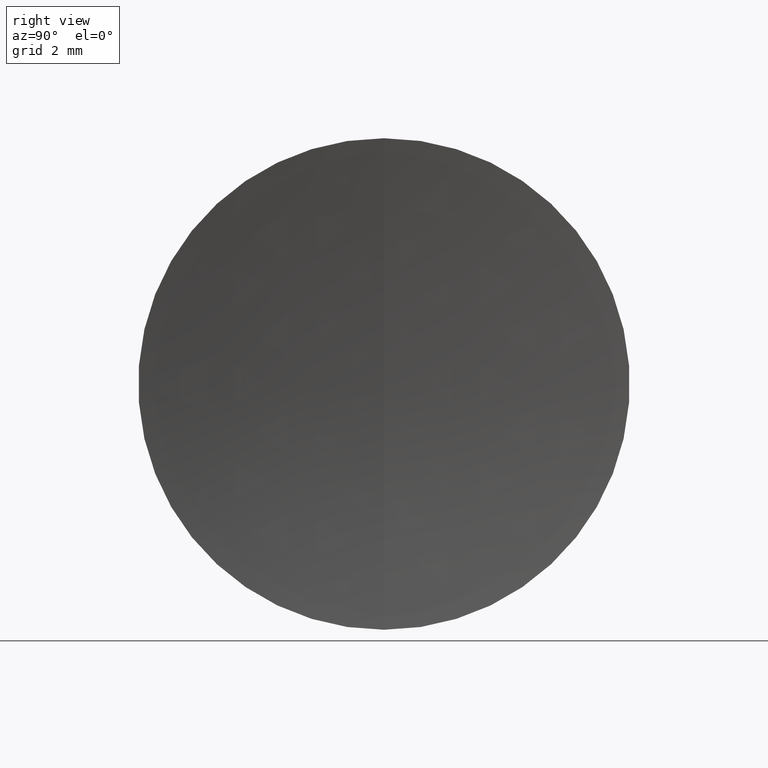
[diagram: clean part render]
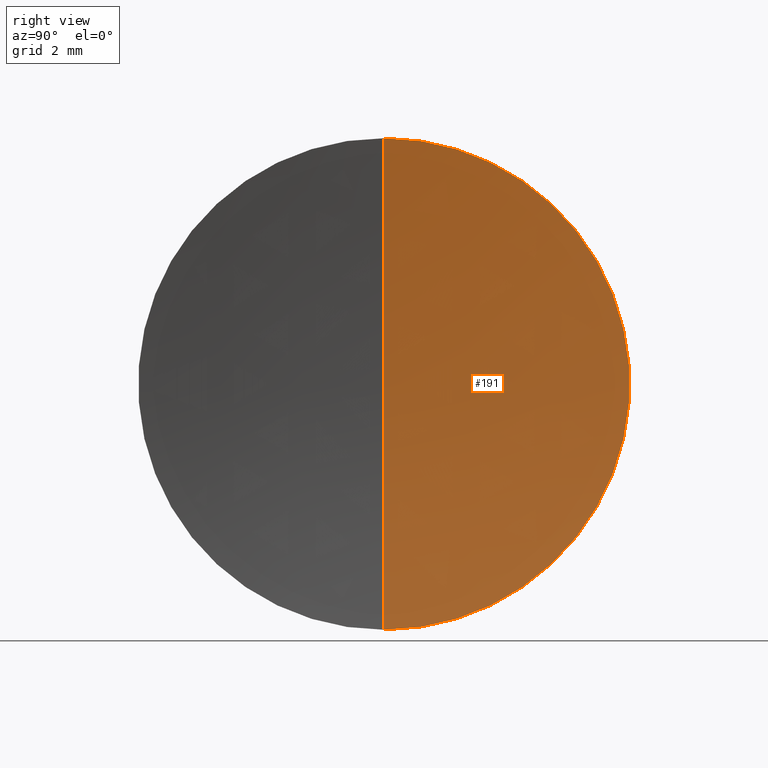
[diagram: same view with one face highlighted and labeled with its STEP entity id]
A machine part, right view. The second image highlights one B-rep face of the part: STEP entity #191.
In plain terms, the highlighted spherical surface has radius 44.6 mm.
Its self-contained STEP definition (entity closure, byte-faithful):
#17 = CARTESIAN_POINT ( 'NONE',  ( 75.97197047241489500, 0.0000000000000000000, 0.0000000000000000000 ) ) ;
#28 = AXIS2_PLACEMENT_3D ( 'NONE', #46, #253, #129 ) ;
#46 = CARTESIAN_POINT ( 'NONE',  ( 75.97197047241489500, 0.0000000000000000000, 0.0000000000000000000 ) ) ;
#49 = EDGE_CURVE ( 'NONE', #215, #295, #222, .T. ) ;
#64 = FACE_OUTER_BOUND ( 'NONE', #302, .T. ) ;
#74 = ORIENTED_EDGE ( 'NONE', *, *, #76, .T. ) ;
#76 = EDGE_CURVE ( 'NONE', #215, #80, #238, .T. ) ;
#80 = VERTEX_POINT ( 'NONE', #93 ) ;
#93 = CARTESIAN_POINT ( 'NONE',  ( 31.37197047241489800, 0.0000000000000000000, -2.730962362098597700E-015 ) ) ;
#103 = EDGE_CURVE ( 'NONE', #295, #80, #182, .T. ) ;
#129 = DIRECTION ( 'NONE',  ( 0.0000000000000000000, 0.0000000000000000000, -1.000000000000000000 ) ) ;
#143 = AXIS2_PLACEMENT_3D ( 'NONE', #244, #173, #196 ) ;
#148 = AXIS2_PLACEMENT_3D ( 'NONE', #315, #152, #284 ) ;
#152 = DIRECTION ( 'NONE',  ( 0.0000000000000000000, -1.000000000000000000, -1.224646799147353200E-016 ) ) ;
#173 = DIRECTION ( 'NONE',  ( -1.000000000000000000, -0.0000000000000000000, -0.0000000000000000000 ) ) ;
#182 = CIRCLE ( 'NONE', #229, 44.60000000000000100 ) ;
#191 = ADVANCED_FACE ( 'NONE', ( #64 ), #339, .F. ) ;
#196 = DIRECTION ( 'NONE',  ( 0.0000000000000000000, 0.0000000000000000000, 1.000000000000000000 ) ) ;
#205 = DIRECTION ( 'NONE',  ( 0.0000000000000000000, 1.000000000000000000, -0.0000000000000000000 ) ) ;
#215 = VERTEX_POINT ( 'NONE', #345 ) ;
#222 = CIRCLE ( 'NONE', #143, 6.349999999999989900 ) ;
#229 = AXIS2_PLACEMENT_3D ( 'NONE', #17, #205, #340 ) ;
#235 = ORIENTED_EDGE ( 'NONE', *, *, #103, .F. ) ;
#238 = CIRCLE ( 'NONE', #148, 44.60000000000000100 ) ;
#244 = CARTESIAN_POINT ( 'NONE',  ( 31.82633082363418000, 0.0000000000000000000, 0.0000000000000000000 ) ) ;
#253 = DIRECTION ( 'NONE',  ( -0.0000000000000000000, -1.000000000000000000, -0.0000000000000000000 ) ) ;
#284 = DIRECTION ( 'NONE',  ( 0.0000000000000000000, 1.224646799147353200E-016, -1.000000000000000000 ) ) ;
#289 = ORIENTED_EDGE ( 'NONE', *, *, #49, .F. ) ;
#295 = VERTEX_POINT ( 'NONE', #336 ) ;
#302 = EDGE_LOOP ( 'NONE', ( #289, #74, #235 ) ) ;
#315 = CARTESIAN_POINT ( 'NONE',  ( 75.97197047241489500, 0.0000000000000000000, 0.0000000000000000000 ) ) ;
#336 = CARTESIAN_POINT ( 'NONE',  ( 31.82633082363418000, 0.0000000000000000000, -6.349999999999999600 ) ) ;
#339 = SPHERICAL_SURFACE ( 'NONE', #28, 44.60000000000000100 ) ;
#340 = DIRECTION ( 'NONE',  ( 0.0000000000000000000, 0.0000000000000000000, 1.000000000000000000 ) ) ;
#345 = CARTESIAN_POINT ( 'NONE',  ( 31.82633082363418000, -7.776507174585692200E-016, 6.349999999999999600 ) ) ;